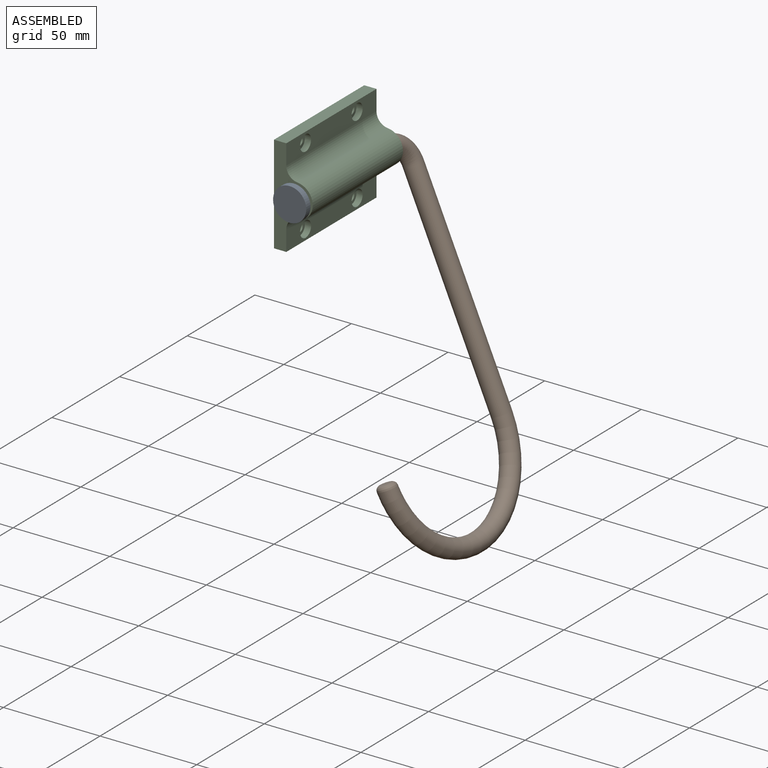
[diagram: assembled view]
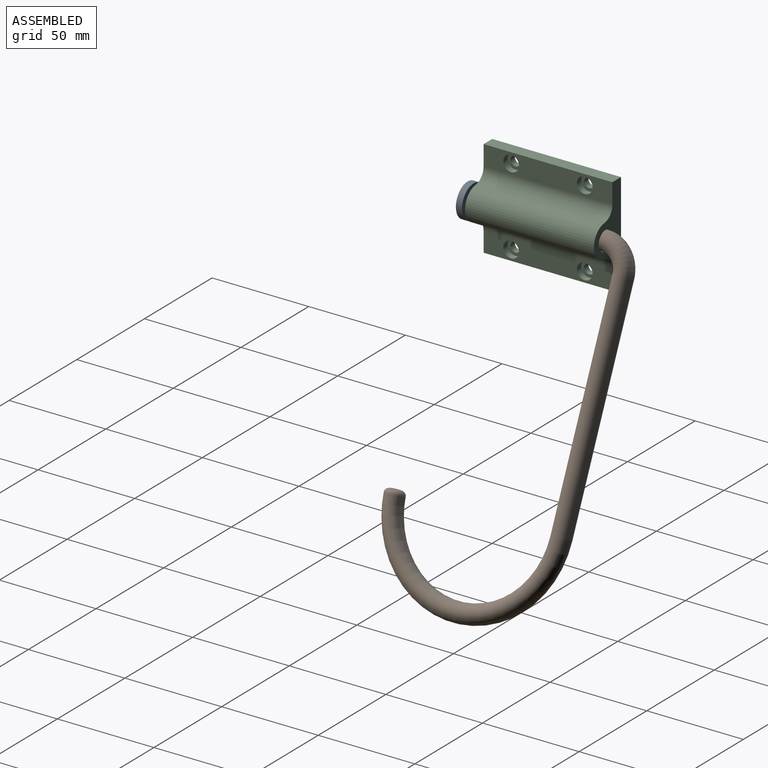
[diagram: assembled view, second angle]
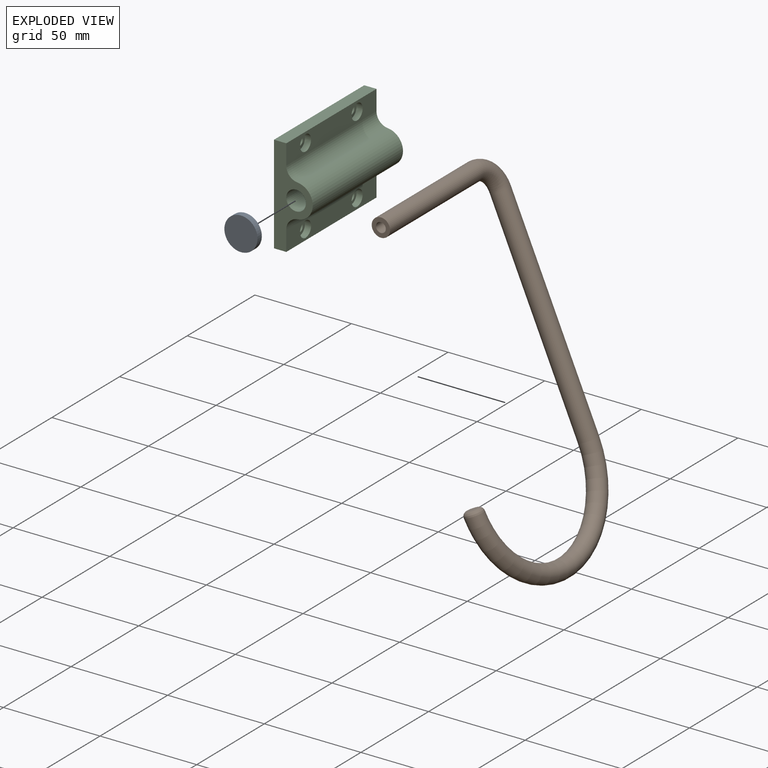
[diagram: exploded view]
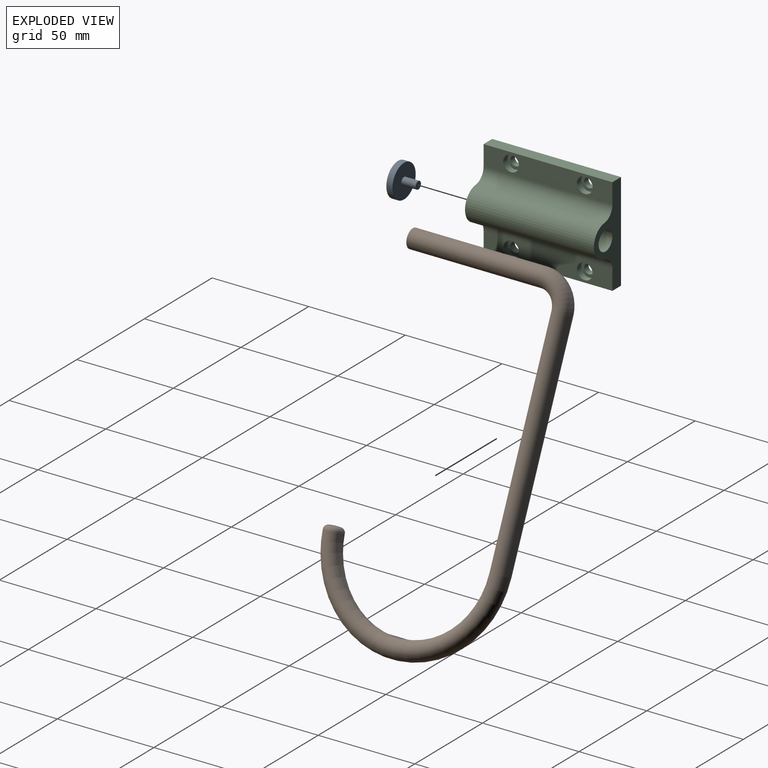
[diagram: exploded view, second angle]
ASSEMBLY  parts=3 mates=3
PART A: 5 faces, bbox 17.2x17.2x10.5 mm
  f0: cylinder r=1.97mm len=7.37mm, axis (0,0,-1), area 91.2mm2, adj f1,f4
  f1: plane 3.94x3.94mm, normal (0,0,-1), area 12.2mm2, adj f0
  f2: plane 17.17x17.17mm, normal (0,0,1), area 231.6mm2, adj f3
  f3: cylinder r=8.59mm len=17.17mm, axis (0,0,-1), area 171.3mm2, adj f2,f4
  f4: plane 17.17x17.17mm, normal (0,0,-1), area 219.3mm2, adj f0,f3
PART B: 9 faces, bbox 103x184.8x9.5 mm
  f0: plane 9.53x9.53mm, normal (-1,0,0), area 51mm2, adj f2,f8
  f1: plane 5.09x5.08mm, normal (0,1,0), area 20.3mm2, adj f6
  f2: cylinder r=4.76mm len=68.26mm, axis (1,0,0), area 2042.7mm2, adj f0,f3
  f3: torus R=12.7mm, axis (0,0,-1), area 597mm2, adj f2,f4
  f4: cylinder r=4.76mm len=114.3mm, axis (0,-1,0), area 3420.3mm2, adj f3,f5
  f5: torus R=42.86mm, axis (0,0,-1), area 3962.4mm2, adj f4,f6
  f6: bspline ~9.65x9.54mm, area 86.7mm2, adj f1,f5
  f7: cone r=0mm half-angle=59deg, axis (-1,0,0), area 23.6mm2, adj f8
  f8: cylinder r=2.54mm len=7.62mm, axis (-1,0,0), area 121.6mm2, adj f0,f7
PART C: 23 faces, bbox 20.1x66.7x50.8 mm
  f0: cylinder r=6.35mm len=66.68mm, axis (0,1,0), area 629.1mm2, adj f1,f7,f9,f10
  f1: plane 66.68x10.47mm, normal (1,0,0), area 594.2mm2, adj f0,f2,f9,f10,f19,f22
  f2: plane 66.68x6.35mm, normal (0,0,1), area 423.4mm2, adj f1,f3,f9,f10
  f3: plane 66.68x50.8mm, normal (-1,0,0), area 3306mm2, adj f2,f4,f9,f10,f11,f14,f17,f20
  f4: plane 66.68x6.35mm, normal (0,0,-1), area 423.4mm2, adj f3,f5,f9,f10
  f5: plane 66.68x10.47mm, normal (1,0,0), area 594.2mm2, adj f4,f6,f9,f10,f13,f16
  f6: cylinder r=6.35mm len=66.68mm, axis (0,1,0), area 629.1mm2, adj f5,f7,f9,f10
  f7: cylinder r=8.64mm len=66.68mm, axis (0,1,0), area 1711.2mm2, adj f0,f6,f9,f10
  f8: cylinder r=5.08mm len=66.68mm, axis (0,1,0), area 2128.2mm2, adj f9,f10
  f9: plane 50.8x20.07mm, normal (0,-1,0), area 463.1mm2, adj f0,f1,f2,f3,f4,f5,f6,f7
  f10: plane 50.8x20.07mm, normal (0,1,0), area 463.1mm2, adj f0,f1,f2,f3,f4,f5,f6,f7
  f11: cylinder r=2.54mm len=5.08mm, axis (1,0,0), area 50.7mm2, adj f3,f12
  f12: plane 8.13x8.13mm, normal (1,0,0), area 31.6mm2, adj f11,f13
  f13: cylinder r=4.06mm len=8.13mm, axis (1,0,0), area 81.1mm2, adj f5,f12
  f14: cylinder r=2.54mm len=5.08mm, axis (1,0,0), area 50.7mm2, adj f3,f15
  f15: plane 8.13x8.13mm, normal (1,0,0), area 31.6mm2, adj f14,f16
  f16: cylinder r=4.06mm len=8.13mm, axis (1,0,0), area 81.1mm2, adj f5,f15
  f17: cylinder r=2.54mm len=5.08mm, axis (1,0,0), area 50.7mm2, adj f3,f18
  f18: plane 8.13x8.13mm, normal (1,0,0), area 31.6mm2, adj f17,f19
  f19: cylinder r=4.06mm len=8.13mm, axis (1,0,0), area 81.1mm2, adj f1,f18
  f20: cylinder r=2.54mm len=5.08mm, axis (1,0,0), area 50.7mm2, adj f3,f21
  f21: plane 8.13x8.13mm, normal (1,0,0), area 31.6mm2, adj f20,f22
  f22: cylinder r=4.06mm len=8.13mm, axis (1,0,0), area 81.1mm2, adj f1,f21
PLACE A rot(axis=(0.73,0.48,-0.48),107.5deg) t=(11.43,5.78,25.4)mm
PLACE B rot(axis=(0.48,0.48,0.73),107.5deg) t=(11.43,-1.59,25.4)mm
PLACE C t=(6.35,66.68,0)mm
MATE cylindrical C.f7 <-> B.f2  axis (0,1,0) through (11.43,0,25.4)mm
MATE revolute B.f2 <-> C.f7  axis (0,1,0) through (11.43,66.68,25.4)mm
MATE slider A.f0 <-> B.f7  axis (0,1,0) through (11.43,-1.59,25.4)mm
